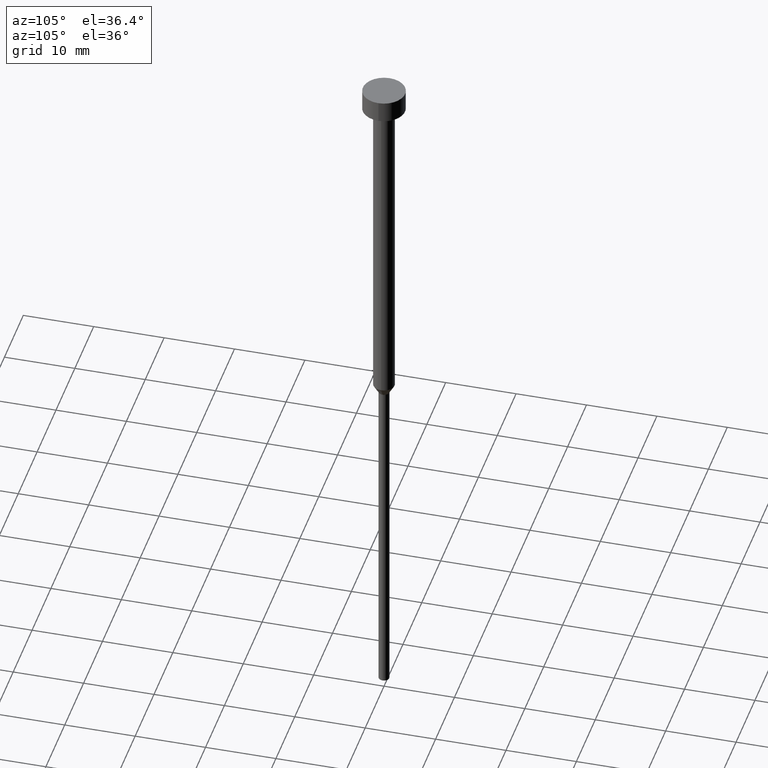
[diagram: clean part render]
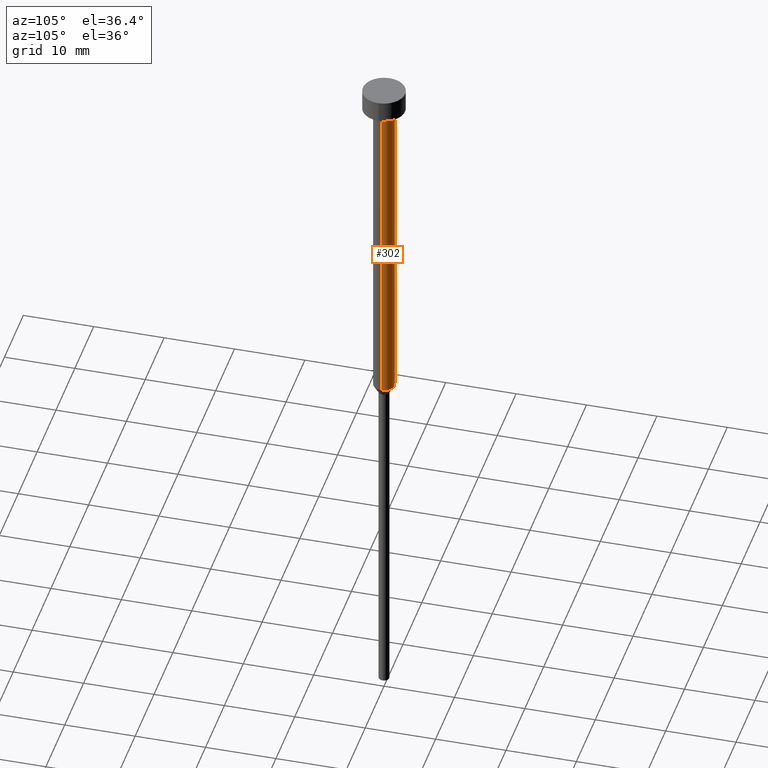
[diagram: same view with one face highlighted and labeled with its STEP entity id]
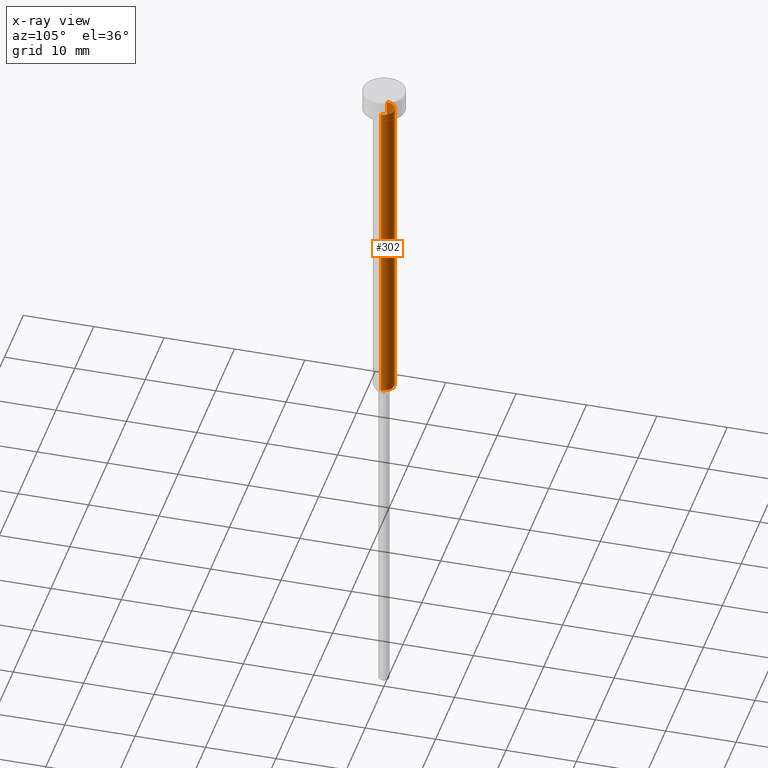
[diagram: x-ray of the same camera — body ghosted, the highlighted face saturated]
A machine part, auxiliary view. The second image highlights one B-rep face of the part: STEP entity #302.
The next image is the same camera in x-ray: the body ghosted, the highlighted face saturated — about 0% of this face is hidden behind the body in this view.
In plain terms, the highlighted cylindrical surface (edge-blend (fillet) strip) has radius 1.5 mm, axis along (-0, -0, 1).
Its self-contained STEP definition (entity closure, byte-faithful):
#7 = CARTESIAN_POINT ( 'NONE',  ( 1.500000000000000000, 0.000000000000000000, 0.000000000000000000 ) ) ;
#8 = CARTESIAN_POINT ( 'NONE',  ( -1.500000000000000000, 1.836970198721029934E-16, 0.000000000000000000 ) ) ;
#24 = ORIENTED_EDGE ( 'NONE', *, *, #110, .T. ) ;
#41 = LINE ( 'NONE', #7, #248 ) ;
#46 = VERTEX_POINT ( 'NONE', #234 ) ;
#48 = DIRECTION ( 'NONE',  ( 1.000000000000000000, 0.000000000000000000, 0.000000000000000000 ) ) ;
#54 = EDGE_CURVE ( 'NONE', #166, #46, #41, .T. ) ;
#71 = CARTESIAN_POINT ( 'NONE',  ( 0.000000000000000000, 0.000000000000000000, -50.00000000000000000 ) ) ;
#77 = AXIS2_PLACEMENT_3D ( 'NONE', #104, #116, #48 ) ;
#91 = DIRECTION ( 'NONE',  ( -0.000000000000000000, -0.000000000000000000, 1.000000000000000000 ) ) ;
#100 = CARTESIAN_POINT ( 'NONE',  ( -1.500000000000000000, 1.836970198721029934E-16, -50.00000000000000000 ) ) ;
#104 = CARTESIAN_POINT ( 'NONE',  ( 0.000000000000000000, 0.000000000000000000, -3.000000000000000444 ) ) ;
#109 = CIRCLE ( 'NONE', #271, 1.500000000000000000 ) ;
#110 = EDGE_CURVE ( 'NONE', #166, #219, #109, .T. ) ;
#116 = DIRECTION ( 'NONE',  ( -0.000000000000000000, -0.000000000000000000, 1.000000000000000000 ) ) ;
#149 = DIRECTION ( 'NONE',  ( -0.000000000000000000, -0.000000000000000000, 1.000000000000000000 ) ) ;
#157 = ORIENTED_EDGE ( 'NONE', *, *, #54, .F. ) ;
#161 = CYLINDRICAL_SURFACE ( 'NONE', #351, 1.500000000000000000 ) ;
#166 = VERTEX_POINT ( 'NONE', #179 ) ;
#168 = VECTOR ( 'NONE', #235, 1000.000000000000000 ) ;
#175 = EDGE_CURVE ( 'NONE', #46, #237, #274, .T. ) ;
#179 = CARTESIAN_POINT ( 'NONE',  ( 1.500000000000000000, 0.000000000000000000, -50.00000000000000000 ) ) ;
#190 = ORIENTED_EDGE ( 'NONE', *, *, #175, .F. ) ;
#195 = EDGE_LOOP ( 'NONE', ( #24, #244, #190, #157 ) ) ;
#207 = CARTESIAN_POINT ( 'NONE',  ( -1.500000000000000000, 1.836970198721029934E-16, -3.000000000000000444 ) ) ;
#211 = DIRECTION ( 'NONE',  ( 1.000000000000000000, 0.000000000000000000, 0.000000000000000000 ) ) ;
#219 = VERTEX_POINT ( 'NONE', #100 ) ;
#234 = CARTESIAN_POINT ( 'NONE',  ( 1.500000000000000000, 0.000000000000000000, -3.000000000000000444 ) ) ;
#235 = DIRECTION ( 'NONE',  ( -0.000000000000000000, -0.000000000000000000, 1.000000000000000000 ) ) ;
#237 = VERTEX_POINT ( 'NONE', #207 ) ;
#244 = ORIENTED_EDGE ( 'NONE', *, *, #278, .T. ) ;
#248 = VECTOR ( 'NONE', #149, 1000.000000000000000 ) ;
#256 = LINE ( 'NONE', #8, #168 ) ;
#257 = DIRECTION ( 'NONE',  ( -0.000000000000000000, -0.000000000000000000, 1.000000000000000000 ) ) ;
#266 = FACE_OUTER_BOUND ( 'NONE', #195, .T. ) ;
#271 = AXIS2_PLACEMENT_3D ( 'NONE', #71, #257, #343 ) ;
#274 = CIRCLE ( 'NONE', #77, 1.500000000000000000 ) ;
#278 = EDGE_CURVE ( 'NONE', #219, #237, #256, .T. ) ;
#302 = ADVANCED_FACE ( 'NONE', ( #266 ), #161, .T. ) ;
#306 = CARTESIAN_POINT ( 'NONE',  ( 0.000000000000000000, 0.000000000000000000, 0.000000000000000000 ) ) ;
#343 = DIRECTION ( 'NONE',  ( 1.000000000000000000, 0.000000000000000000, 0.000000000000000000 ) ) ;
#351 = AXIS2_PLACEMENT_3D ( 'NONE', #306, #91, #211 ) ;